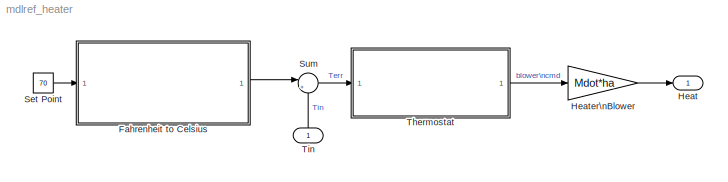
MODEL mdlref_heater
KIND model
BLOCK [ModelReference] Fahrenheit to Celsius
  CopyOfModelName = mdlref_F2C
  DefaultDataLogging = off
  ModelName = mdlref_F2C
  ModelReferenceVersion = 1.8
  Ports = [1, 1]
BLOCK [Outport] Heat
  BusOutputAsStruct = off
  IconDisplay = Port number
BLOCK [Gain] Heater\nBlower
  Gain = Mdot*ha
BLOCK [Constant] Set Point
  Value = 70
BLOCK [Sum] Sum
  IconShape = round
  Inputs = |+-
  Ports = [2, 1]
BLOCK [ModelReference] Thermostat
  CopyOfModelName = mdlref_thermostat
  DefaultDataLogging = off
  ModelName = mdlref_thermostat
  ModelReferenceVersion = 1.8
  Ports = [1, 1]
BLOCK [Inport] Tin
  DataType = double
  IconDisplay = Port number
  LatchInput = off
  Port = 1
  PortDimensions = 1
  SampleTime = 0
  SamplingMode = Sample based
  SignalType = real
LINE Fahrenheit to Celsius:1 -> Sum:1
LINE Heater\nBlower:1 -> Heat:1
LINE Set Point:1 -> Fahrenheit to Celsius:1
LINE Sum:1 -> Thermostat:1
LINE Thermostat:1 -> Heater\nBlower:1
LINE Tin:1 -> Sum:2
